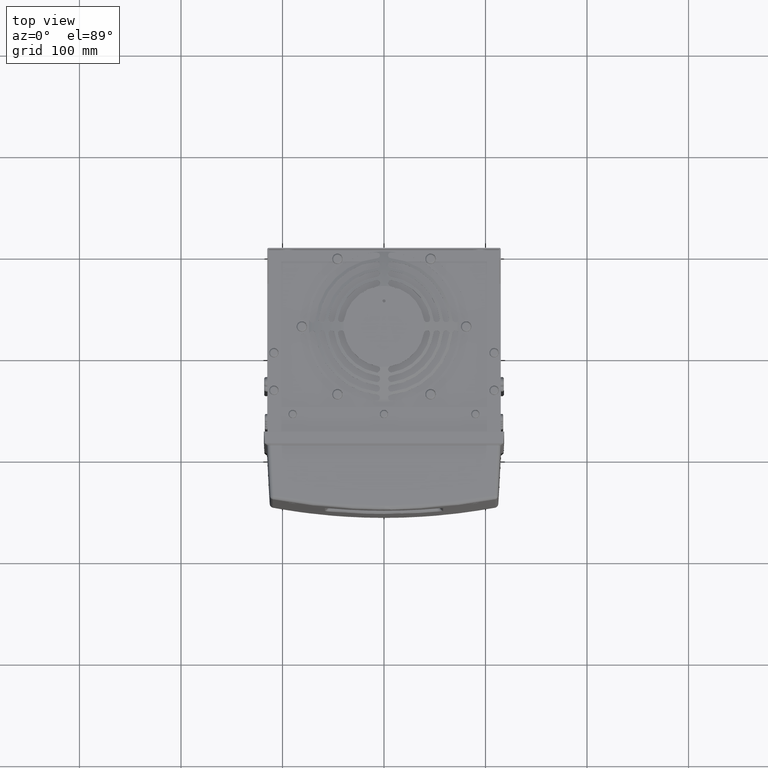
[diagram: clean part render]
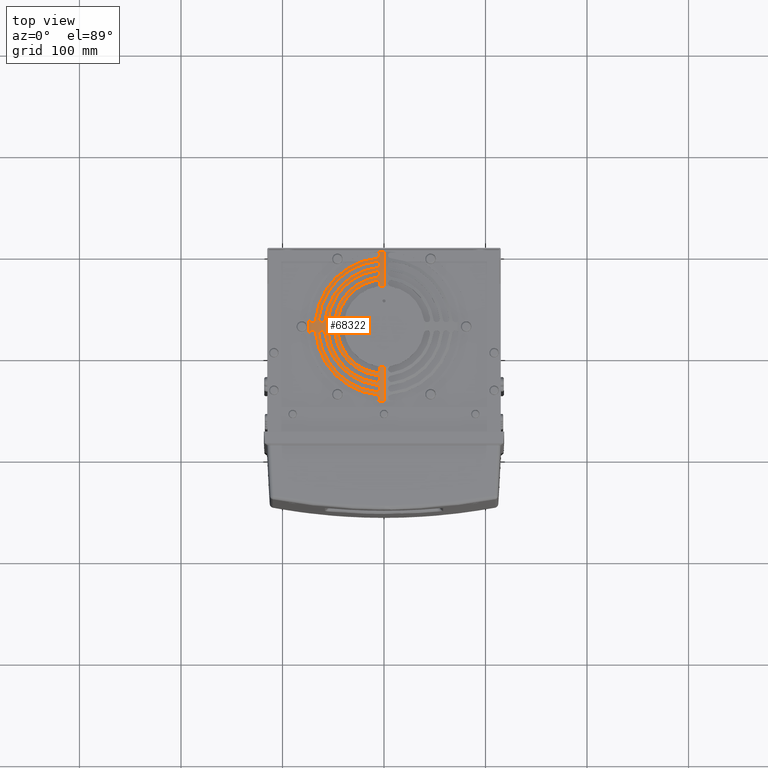
[diagram: same view with one face highlighted and labeled with its STEP entity id]
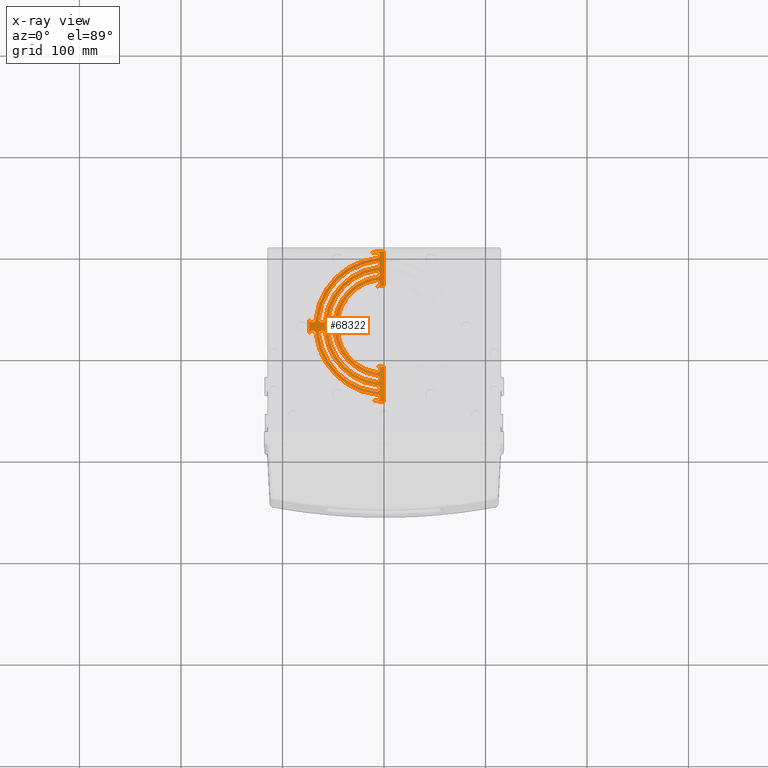
[diagram: x-ray of the same camera — body ghosted, the highlighted face saturated]
A machine part, top view. The second image highlights one B-rep face of the part: STEP entity #68322.
The next image is the same camera in x-ray: the body ghosted, the highlighted face saturated — about 0% of this face is hidden behind the body in this view.
In plain terms, the highlighted face is a freeform B-spline surface patch.
Its self-contained STEP definition (entity closure, byte-faithful):
#1633=CARTESIAN_POINT('',(7.640418649747E-12,-7.699999855511E1,
2.849065533155E2));
#1634=DIRECTION('',(-2.788477496170E-12,2.946502403348E-12,1.E0));
#1635=DIRECTION('',(-1.638589591001E-1,-9.864837766140E-1,2.449649004275E-12));
#1636=AXIS2_PLACEMENT_3D('',#1633,#1634,#1635);
#1691=CARTESIAN_POINT('',(7.640418671106E-12,-7.699999855511E1,
2.849065533078E2));
#1692=DIRECTION('',(-2.788477496170E-12,2.946502403348E-12,1.E0));
#1693=DIRECTION('',(-1.734238525235E-11,1.E0,-2.946645838143E-12));
#1694=AXIS2_PLACEMENT_3D('',#1691,#1692,#1693);
#1715=CARTESIAN_POINT('',(7.640742855842E-12,-7.699999855511E1,
2.849064370491E2));
#1716=DIRECTION('',(-2.788477496170E-12,2.946502403348E-12,1.E0));
#1717=DIRECTION('',(-9.952751908840E-1,9.709425529240E-2,-3.061088400337E-12));
#1718=AXIS2_PLACEMENT_3D('',#1715,#1716,#1717);
#29880=CARTESIAN_POINT('',(-4.923442703598E-5,-8.247413648874E1,
1.045233934910E2));
#29881=DIRECTION('',(9.999999999596E-1,-8.994098846346E-6,2.788503957153E-12));
#29882=DIRECTION('',(-1.599957301674E-6,-1.778893677859E-1,9.840504930267E-1));
#29883=AXIS2_PLACEMENT_3D('',#29880,#29881,#29882);
#29888=CARTESIAN_POINT('',(1.312158383080E-12,-7.699999855510E1,
2.871759853892E2));
#29889=DIRECTION('',(2.788477496170E-12,-2.946502403348E-12,-1.E0));
#29890=DIRECTION('',(-9.664791533652E-2,-9.953186326303E-1,2.663381849559E-12));
#29891=AXIS2_PLACEMENT_3D('',#29888,#29889,#29890);
#29896=CARTESIAN_POINT('',(1.312138174433E-12,-7.699999855510E1,
2.871759926364E2));
#29897=DIRECTION('',(2.788477496170E-12,-2.946502403348E-12,-1.E0));
#29898=DIRECTION('',(-9.948946575624E-1,1.009188800663E-1,-3.071454560899E-12));
#29899=AXIS2_PLACEMENT_3D('',#29896,#29897,#29898);
#29904=CARTESIAN_POINT('',(-1.537168819906E-11,-7.699999855508E1,
2.931591237165E2));
#29905=DIRECTION('',(-2.788477496170E-12,2.946502403348E-12,1.E0));
#29906=DIRECTION('',(-1.664735957496E-1,9.860459126827E-1,-3.369952048199E-12));
#29907=AXIS2_PLACEMENT_3D('',#29904,#29905,#29906);
#29912=CARTESIAN_POINT('',(-1.537182981204E-11,-7.699999855508E1,
2.931591745015E2));
#29913=DIRECTION('',(-2.788477496170E-12,2.946502403348E-12,1.E0));
#29914=DIRECTION('',(-9.860457795378E-1,-1.664743843829E-1,
-2.258976850651E-12));
#29915=AXIS2_PLACEMENT_3D('',#29912,#29913,#29914);
#29920=CARTESIAN_POINT('',(-6.797708572208E-12,-7.699999855509E1,
2.900843348259E2));
#29921=DIRECTION('',(2.788477496170E-12,-2.946502403348E-12,-1.E0));
#29922=DIRECTION('',(-1.161649291385E-1,-9.932299377477E-1,2.602791793278E-12));
#29923=AXIS2_PLACEMENT_3D('',#29920,#29921,#29922);
#29928=CARTESIAN_POINT('',(-6.113332795139E1,-8.099931862158E1,
2.892430471745E2));
#29929=CARTESIAN_POINT('',(-6.151675910830E1,-8.099932006563E1,
2.891274885152E2));
#29930=CARTESIAN_POINT('',(-6.226249378030E1,-8.114304335805E1,
2.888972206941E2));
#29931=CARTESIAN_POINT('',(-6.318448105190E1,-8.168221993923E1,
2.885987337726E2));
#29932=CARTESIAN_POINT('',(-6.388818000260E1,-8.249980178548E1,
2.883559456713E2));
#29933=CARTESIAN_POINT('',(-6.427561929968E1,-8.350530610685E1,
2.882020259139E2));
#29934=CARTESIAN_POINT('',(-6.430041659141E1,-8.418766437904E1,
2.881703017487E2));
#29935=CARTESIAN_POINT('',(-6.426194795762E1,-8.451635272320E1,
2.881703087694E2));
#29940=CARTESIAN_POINT('',(-1.461371694940E-12,-7.699999855510E1,
2.881706249665E2));
#29941=DIRECTION('',(-2.788477496170E-12,2.946502403348E-12,1.E0));
#29942=DIRECTION('',(-9.932294031286E-1,-1.161695001316E-1,
-2.427534040941E-12));
#29943=AXIS2_PLACEMENT_3D('',#29940,#29941,#29942);
#29948=CARTESIAN_POINT('',(-9.110634531566E-12,-7.699999855509E1,
2.909137931818E2));
#29949=DIRECTION('',(-2.788477496170E-12,2.946502403348E-12,1.E0));
#29950=DIRECTION('',(-9.905924194841E-1,-1.368453815834E-1,
-2.358948326642E-12));
#29951=AXIS2_PLACEMENT_3D('',#29948,#29949,#29950);
#29956=CARTESIAN_POINT('',(-1.350069010047E-11,-7.699999855508E1,
2.924881489279E2));
#29957=DIRECTION('',(2.788477496170E-12,-2.946502403348E-12,-1.E0));
#29958=DIRECTION('',(-1.368409117312E-1,-9.905930369615E-1,2.537757565272E-12));
#29959=AXIS2_PLACEMENT_3D('',#29956,#29957,#29958);
#29964=CARTESIAN_POINT('',(-6.797544266582E-12,-7.699999855509E1,
2.900842759028E2));
#29965=DIRECTION('',(2.788477496170E-12,-2.946502403348E-12,-1.E0));
#29966=DIRECTION('',(-9.932293807024E-1,1.161696918712E-1,-3.111853375519E-12));
#29967=AXIS2_PLACEMENT_3D('',#29964,#29965,#29966);
#29972=CARTESIAN_POINT('',(-4.000467301992E0,-1.586681880750E1,
2.892430671732E2));
#29973=CARTESIAN_POINT('',(-4.000461899948E0,-1.548279784150E1,
2.891273313805E2));
#29974=CARTESIAN_POINT('',(-4.142931212332E0,-1.473612641807E1,
2.888967996289E2));
#29975=CARTESIAN_POINT('',(-4.683350267021E0,-1.381443109528E1,
2.885983647429E2));
#29976=CARTESIAN_POINT('',(-5.500437690222E0,-1.311149238785E1,
2.883558268211E2));
#29977=CARTESIAN_POINT('',(-6.505583649372E0,-1.272440882344E1,
2.882020155362E2));
#29978=CARTESIAN_POINT('',(-7.187337592673E0,-1.269957667804E1,
2.881703292429E2));
#29979=CARTESIAN_POINT('',(-7.515880387838E0,-1.273799610742E1,
2.881703273116E2));
#29984=CARTESIAN_POINT('',(-1.461573215579E-12,-7.699999855510E1,
2.881706972355E2));
#29985=DIRECTION('',(-2.788477496170E-12,2.946502403348E-12,1.E0));
#29986=DIRECTION('',(-1.161648292203E-1,9.932299494338E-1,-3.250780695651E-12));
#29987=AXIS2_PLACEMENT_3D('',#29984,#29985,#29986);
#29992=CARTESIAN_POINT('',(-1.350060663826E-11,-7.699999855508E1,
2.924881189967E2));
#29993=DIRECTION('',(2.788477496170E-12,-2.946502403348E-12,-1.E0));
#29994=DIRECTION('',(-9.905923589570E-1,1.368458197245E-1,-3.165242226030E-12));
#29995=AXIS2_PLACEMENT_3D('',#29992,#29993,#29994);
#30000=CARTESIAN_POINT('',(-9.110741366267E-12,-7.699999855509E1,
2.909138314947E2));
#30001=DIRECTION('',(-2.788477496170E-12,2.946502403348E-12,1.E0));
#30002=DIRECTION('',(-1.368407500970E-1,9.905930592897E-1,-3.299868380346E-12));
#30003=AXIS2_PLACEMENT_3D('',#30000,#30001,#30002);
#30016=CARTESIAN_POINT('',(-1.885000635055E-11,-7.699999855508E1,
2.944065134323E2));
#30017=DIRECTION('',(2.788477496170E-12,-2.946502403348E-12,-1.E0));
#30018=DIRECTION('',(8.294783060497E-10,-1.E0,2.946438241940E-12));
#30019=AXIS2_PLACEMENT_3D('',#30016,#30017,#30018);
#30032=CARTESIAN_POINT('',(-1.884999437439E-11,-7.699999855508E1,
2.944065091374E2));
#30033=DIRECTION('',(2.788477496170E-12,-2.946502403348E-12,-1.E0));
#30034=DIRECTION('',(-9.860447420362E-1,-1.664805295003E-1,
-2.259458321004E-12));
#30035=AXIS2_PLACEMENT_3D('',#30032,#30033,#30034);
#30048=CARTESIAN_POINT('',(-1.885000635110E-11,-7.699999855508E1,
2.944065134325E2));
#30049=DIRECTION('',(2.788477496170E-12,-2.946502403348E-12,-1.E0));
#30050=DIRECTION('',(-1.664846300162E-1,9.860440497099E-1,-3.369194286439E-12));
#30051=AXIS2_PLACEMENT_3D('',#30048,#30049,#30050);
#30120=CARTESIAN_POINT('',(1.266336547884E-4,-3.720017860539E1,
2.944065258146E2));
#30121=CARTESIAN_POINT('',(1.003769075784E-4,-3.331507317628E1,
2.937042051986E2));
#30122=CARTESIAN_POINT('',(5.457586318429E-4,-2.558712525969E1,
2.920608284264E2));
#30123=CARTESIAN_POINT('',(8.803894859939E-4,-1.416765727772E1,
2.888891354757E2));
#30124=CARTESIAN_POINT('',(-2.182782502253E-5,-6.694397680358E0,
2.863099425846E2));
#30125=CARTESIAN_POINT('',(1.341269606875E-5,-3.000274899678E0,
2.849065893839E2));
#31450=CARTESIAN_POINT('',(-6.543145521984E0,-1.443830835213E2,
2.871756310863E2));
#31451=CARTESIAN_POINT('',(-6.203083500675E0,-1.444160942047E2,
2.871756349522E2));
#31452=CARTESIAN_POINT('',(-5.533198782469E0,-1.446102392756E2,
2.871298740895E2));
#31453=CARTESIAN_POINT('',(-4.706781381810E0,-1.452222068530E2,
2.869419642661E2));
#31454=CARTESIAN_POINT('',(-4.120295147298E0,-1.461527912470E2,
2.866323381005E2));
#31455=CARTESIAN_POINT('',(-3.931151025089E0,-1.472305075440E2,
2.862559477480E2));
#31456=CARTESIAN_POINT('',(-4.157567436625E0,-1.483235255682E2,
2.858581666391E2));
#31457=CARTESIAN_POINT('',(-4.822520403871E0,-1.492809839189E2,
2.854921001298E2));
#31458=CARTESIAN_POINT('',(-5.774988176306E0,-1.498748436794E2,
2.852455792416E2));
#31459=CARTESIAN_POINT('',(-6.474293837774E0,-1.499999998633E2,
2.851762221276E2));
#31460=CARTESIAN_POINT('',(-6.815225381727E0,-1.499999927464E2,
2.851643220778E2));
#31472=CARTESIAN_POINT('',(-6.815225381727E0,-1.499999927464E2,
2.851643220778E2));
#31473=CARTESIAN_POINT('',(-7.405551702015E0,-1.499999927464E2,
2.851437124166E2));
#31474=CARTESIAN_POINT('',(-8.585821206273E0,-1.499999718205E2,
2.850971305905E2));
#31475=CARTESIAN_POINT('',(-1.035553194242E1,-1.500001008393E2,
2.850111836909E2));
#31476=CARTESIAN_POINT('',(-1.153537566448E1,-1.499997777151E2,
2.849432484820E2));
#31477=CARTESIAN_POINT('',(-1.212485606840E1,-1.499997777151E2,
2.849065560848E2));
#31496=CARTESIAN_POINT('',(-7.362227263838E1,-8.446760405730E1,
2.849064925307E2));
#31497=CARTESIAN_POINT('',(-7.365606996613E1,-8.413438190599E1,
2.849064941194E2));
#31498=CARTESIAN_POINT('',(-7.361902549068E1,-8.344713943747E1,
2.849451425610E2));
#31499=CARTESIAN_POINT('',(-7.320869795854E1,-8.244303084913E1,
2.851304109762E2));
#31500=CARTESIAN_POINT('',(-7.249346166801E1,-8.164829254874E1,
2.854175273851E2));
#31501=CARTESIAN_POINT('',(-7.159566805531E1,-8.113882250385E1,
2.857594529785E2));
#31502=CARTESIAN_POINT('',(-7.086495119823E1,-8.099933528029E1,
2.860262894403E2));
#31503=CARTESIAN_POINT('',(-7.048831989779E1,-8.099933421884E1,
2.861611165774E2));
#31508=CARTESIAN_POINT('',(-7.048831989779E1,-8.099933421884E1,
2.861611165774E2));
#31509=CARTESIAN_POINT('',(-7.009365645018E1,-8.099933310656E1,
2.863023988943E2));
#31510=CARTESIAN_POINT('',(-6.931209765143E1,-8.114865131300E1,
2.865760914741E2));
#31511=CARTESIAN_POINT('',(-6.829557395430E1,-8.178579973268E1,
2.869150368016E2));
#31512=CARTESIAN_POINT('',(-6.759289874445E1,-8.274161768219E1,
2.871300623459E2));
#31513=CARTESIAN_POINT('',(-6.739089430215E1,-8.346911852611E1,
2.871757604906E2));
#31514=CARTESIAN_POINT('',(-6.735407274019E1,-8.383226369552E1,
2.871757551151E2));
#31547=CARTESIAN_POINT('',(-6.735437425156E1,-7.016769764906E1,
2.871756357288E2));
#31548=CARTESIAN_POINT('',(-6.739341294433E1,-7.055268073181E1,
2.871756405823E2));
#31549=CARTESIAN_POINT('',(-6.761470018995E1,-7.132000694058E1,
2.871245229811E2));
#31550=CARTESIAN_POINT('',(-6.838670208058E1,-7.230653876432E1,
2.868858212091E2));
#31551=CARTESIAN_POINT('',(-6.947442209683E1,-7.290901071746E1,
2.865205962267E2));
#31552=CARTESIAN_POINT('',(-7.061281366379E1,-7.306880303793E1,
2.861192109637E2));
#31553=CARTESIAN_POINT('',(-7.181648013716E1,-7.279830129142E1,
2.856775233287E2));
#31554=CARTESIAN_POINT('',(-7.285129047705E1,-7.205327297987E1,
2.852774880601E2));
#31555=CARTESIAN_POINT('',(-7.349206801972E1,-7.101969670874E1,
2.850092480759E2));
#31556=CARTESIAN_POINT('',(-7.364864623345E1,-7.021554084436E1,
2.849195945637E2));
#31557=CARTESIAN_POINT('',(-7.364430837937E1,-6.981556822730E1,
2.849064820852E2));
#31569=CARTESIAN_POINT('',(-1.212480965506E1,-4.000215659993E0,
2.849065590892E2));
#31570=CARTESIAN_POINT('',(-1.153533245653E1,-4.000215659992E0,
2.849432506721E2));
#31571=CARTESIAN_POINT('',(-1.035556964740E1,-3.999897353449E0,
2.850111853359E2));
#31572=CARTESIAN_POINT('',(-8.585834590874E0,-4.000027103555E0,
2.850971317798E2));
#31573=CARTESIAN_POINT('',(-7.405538856762E0,-3.999999409812E0,
2.851437063925E2));
#31574=CARTESIAN_POINT('',(-6.815210455831E0,-3.999999409812E0,
2.851643161520E2));
#31586=CARTESIAN_POINT('',(-6.815210455831E0,-3.999999409812E0,
2.851643161520E2));
#31587=CARTESIAN_POINT('',(-6.471321657190E0,-3.999999409812E0,
2.851763221226E2));
#31588=CARTESIAN_POINT('',(-5.783478191062E0,-4.130706940740E0,
2.852473939971E2));
#31589=CARTESIAN_POINT('',(-4.908834474942E0,-4.656458590885E0,
2.854665850830E2));
#31590=CARTESIAN_POINT('',(-4.232223006172E0,-5.525764484658E0,
2.858014805019E2));
#31591=CARTESIAN_POINT('',(-3.939560247715E0,-6.588950966439E0,
2.861910776325E2));
#31592=CARTESIAN_POINT('',(-4.061100828884E0,-7.689920071199E0,
2.865784479667E2));
#31593=CARTESIAN_POINT('',(-4.623882561526E0,-8.702751795953E0,
2.869182059587E2));
#31594=CARTESIAN_POINT('',(-5.518554736739E0,-9.391862517155E0,
2.871312052166E2));
#31595=CARTESIAN_POINT('',(-6.203366910660E0,-9.584249165076E0,
2.871757632299E2));
#31596=CARTESIAN_POINT('',(-6.543147908994E0,-9.617225539975E0,
2.871757570144E2));
#31780=CARTESIAN_POINT('',(-7.580978200018E0,-2.212118418891E1,
2.909135891182E2));
#31781=CARTESIAN_POINT('',(-7.231949221446E0,-2.207297731809E1,
2.909135912919E2));
#31782=CARTESIAN_POINT('',(-6.513429992696E0,-2.209291634049E1,
2.909433113636E2));
#31783=CARTESIAN_POINT('',(-5.483253219207E0,-2.249464204111E1,
2.910794402740E2));
#31784=CARTESIAN_POINT('',(-4.667047306526E0,-2.320871364955E1,
2.912856093866E2));
#31785=CARTESIAN_POINT('',(-4.136089243767E0,-2.413272936536E1,
2.915336877561E2));
#31786=CARTESIAN_POINT('',(-4.000304195063E0,-2.486712110879E1,
2.917202015719E2));
#31787=CARTESIAN_POINT('',(-4.000308630482E0,-2.524161967163E1,
2.918127825715E2));
#31792=CARTESIAN_POINT('',(-4.000308630482E0,-2.524161967163E1,
2.918127825715E2));
#31793=CARTESIAN_POINT('',(-4.000313140108E0,-2.562238394403E1,
2.919069125374E2));
#31794=CARTESIAN_POINT('',(-4.138549257004E0,-2.638038880449E1,
2.920890755183E2));
#31795=CARTESIAN_POINT('',(-4.738513058007E0,-2.737490451877E1,
2.923131492796E2));
#31796=CARTESIAN_POINT('',(-5.645274129312E0,-2.808487843772E1,
2.924563435874E2));
#31797=CARTESIAN_POINT('',(-6.357784522816E0,-2.831226455952E1,
2.924880037563E2));
#31798=CARTESIAN_POINT('',(-6.718830099885E0,-2.836215002755E1,
2.924880061852E2));
#31817=CARTESIAN_POINT('',(-4.863782892088E1,-7.028078717252E1,
2.924879952797E2));
#31818=CARTESIAN_POINT('',(-4.868944200004E1,-7.065457272422E1,
2.924880013466E2));
#31819=CARTESIAN_POINT('',(-4.892874225646E1,-7.138141835827E1,
2.924539213951E2));
#31820=CARTESIAN_POINT('',(-4.963988698492E1,-7.227087576829E1,
2.923098377997E2));
#31821=CARTESIAN_POINT('',(-5.061652296732E1,-7.285849366965E1,
2.920897468026E2));
#31822=CARTESIAN_POINT('',(-5.137519003625E1,-7.300041061049E1,
2.919075279769E2));
#31823=CARTESIAN_POINT('',(-5.175844706669E1,-7.300041306321E1,
2.918127815076E2));
#31828=CARTESIAN_POINT('',(-5.175844706669E1,-7.300041306321E1,
2.918127815076E2));
#31829=CARTESIAN_POINT('',(-5.212509453974E1,-7.300041540963E1,
2.917221411519E2));
#31830=CARTESIAN_POINT('',(-5.285103900928E1,-7.286968848904E1,
2.915379073981E2));
#31831=CARTESIAN_POINT('',(-5.379042197033E1,-7.233677676450E1,
2.912859874474E2));
#31832=CARTESIAN_POINT('',(-5.451530689872E1,-7.150364165053E1,
2.910764819245E2));
#31833=CARTESIAN_POINT('',(-5.491109805154E1,-7.046383581369E1,
2.909415134358E2));
#31834=CARTESIAN_POINT('',(-5.492542713E1,-6.975800860204E1,2.909136551819E2));
#31835=CARTESIAN_POINT('',(-5.487852350634E1,-6.941864424006E1,
2.909136603577E2));
#31847=CARTESIAN_POINT('',(-4.000467301992E0,-1.586681880750E1,
2.892430671732E2));
#31848=CARTESIAN_POINT('',(-4.000472762046E0,-1.625496363613E1,
2.893600458109E2));
#31849=CARTESIAN_POINT('',(-4.143637884899E0,-1.702580522111E1,
2.895867259049E2));
#31850=CARTESIAN_POINT('',(-4.764187782727E0,-1.803255491497E1,
2.898667895347E2));
#31851=CARTESIAN_POINT('',(-5.698004246694E0,-1.873926268378E1,
2.900453253871E2));
#31852=CARTESIAN_POINT('',(-6.420586680385E0,-1.895311562758E1,
2.900840991267E2));
#31853=CARTESIAN_POINT('',(-6.783985098325E0,-1.899562636949E1,
2.900841016277E2));
#31872=CARTESIAN_POINT('',(-5.800459238385E1,-7.021552041267E1,
2.900840091059E2));
#31873=CARTESIAN_POINT('',(-5.804694353873E1,-7.057786039232E1,
2.900840181330E2));
#31874=CARTESIAN_POINT('',(-5.825815186461E1,-7.131674799309E1,
2.900465903723E2));
#31875=CARTESIAN_POINT('',(-5.904774564097E1,-7.232548589987E1,
2.898458526508E2));
#31876=CARTESIAN_POINT('',(-6.015911815247E1,-7.292348146126E1,
2.895337241928E2));
#31877=CARTESIAN_POINT('',(-6.129890584874E1,-7.306325158026E1,
2.891955944964E2));
#31878=CARTESIAN_POINT('',(-6.244295133726E1,-7.279714054977E1,
2.888406413677E2));
#31879=CARTESIAN_POINT('',(-6.345251842104E1,-7.209805741454E1,
2.885096652800E2));
#31880=CARTESIAN_POINT('',(-6.413055014891E1,-7.105179916430E1,
2.882660886569E2));
#31881=CARTESIAN_POINT('',(-6.428335654346E1,-7.024907218250E1,
2.881909619769E2));
#31882=CARTESIAN_POINT('',(-6.428330525401E1,-6.984933895792E1,
2.881767312712E2));
#31887=CARTESIAN_POINT('',(-6.428330525401E1,-6.984933895792E1,
2.881767312712E2));
#31888=CARTESIAN_POINT('',(-6.428330002446E1,-6.980858161170E1,
2.881752802890E2));
#31889=CARTESIAN_POINT('',(-6.428165162932E1,-6.972744725032E1,
2.881728837915E2));
#31890=CARTESIAN_POINT('',(-6.427472779343E1,-6.960537831879E1,
2.881706309038E2));
#31891=CARTESIAN_POINT('',(-6.426635285754E1,-6.952418783263E1,
2.881704515607E2));
#31892=CARTESIAN_POINT('',(-6.426161842103E1,-6.948373580483E1,
2.881704524779E2));
#31904=CARTESIAN_POINT('',(-4.545669872093E1,-8.467453422426E1,
2.931590553981E2));
#31905=CARTESIAN_POINT('',(-4.551688415143E1,-8.431810170962E1,
2.931590538654E2));
#31906=CARTESIAN_POINT('',(-4.551459842755E1,-8.358175517111E1,
2.931840598738E2));
#31907=CARTESIAN_POINT('',(-4.512695990294E1,-8.252875552147E1,
2.932958638060E2));
#31908=CARTESIAN_POINT('',(-4.440994844060E1,-8.168501128366E1,
2.934652031545E2));
#31909=CARTESIAN_POINT('',(-4.346638113720E1,-8.113650668907E1,
2.936686466599E2));
#31910=CARTESIAN_POINT('',(-4.272591688942E1,-8.100002504045E1,
2.938177499398E2));
#31911=CARTESIAN_POINT('',(-4.235069840724E1,-8.100002301961E1,
2.938908663823E2));
#31916=CARTESIAN_POINT('',(-4.235069840724E1,-8.100002301961E1,
2.938908663823E2));
#31917=CARTESIAN_POINT('',(-4.197920532991E1,-8.100002101883E1,
2.939632568787E2));
#31918=CARTESIAN_POINT('',(-4.123821723462E1,-8.113220884653E1,
2.941028565034E2));
#31919=CARTESIAN_POINT('',(-4.026069824362E1,-8.170511534660E1,
2.942732525267E2));
#31920=CARTESIAN_POINT('',(-3.954762187732E1,-8.257639397805E1,
2.943822948224E2));
#31921=CARTESIAN_POINT('',(-3.930447856755E1,-8.327105911719E1,
2.944064983322E2));
#31922=CARTESIAN_POINT('',(-3.924459918933E1,-8.362573652171E1,
2.944064979583E2));
#31941=CARTESIAN_POINT('',(-6.625784646966E0,-1.162445125675E2,
2.944065148568E2));
#31942=CARTESIAN_POINT('',(-6.248159967801E0,-1.163082676070E2,
2.944065150650E2));
#31943=CARTESIAN_POINT('',(-5.507598036338E0,-1.165753681604E2,
2.943791950451E2));
#31944=CARTESIAN_POINT('',(-4.591104726586E0,-1.173830846404E2,
2.942533384213E2));
#31945=CARTESIAN_POINT('',(-4.052058741859E0,-1.184667571362E2,
2.940612385413E2));
#31946=CARTESIAN_POINT('',(-3.941504385452E0,-1.196141940415E2,
2.938415840145E2));
#31947=CARTESIAN_POINT('',(-4.247319568801E0,-1.207514183989E2,
2.936090326870E2));
#31948=CARTESIAN_POINT('',(-4.953897669531E0,-1.217115230682E2,
2.933968899749E2));
#31949=CARTESIAN_POINT('',(-5.973055863072E0,-1.223530924573E2,
2.932363129796E2));
#31950=CARTESIAN_POINT('',(-6.757806354932E0,-1.225004809756E2,
2.931809973502E2));
#31951=CARTESIAN_POINT('',(-7.150118121773E0,-1.225004711490E2,
2.931678970084E2));
#31956=CARTESIAN_POINT('',(-7.150118121773E0,-1.225004711490E2,
2.931678970084E2));
#31957=CARTESIAN_POINT('',(-7.208671034313E0,-1.225004696824E2,
2.931659417696E2));
#31958=CARTESIAN_POINT('',(-7.325705522371E0,-1.224974670787E2,
2.931625951676E2));
#31959=CARTESIAN_POINT('',(-7.500797724444E0,-1.224828256442E2,
2.931596219541E2));
#31960=CARTESIAN_POINT('',(-7.616748219112E0,-1.224661824041E2,
2.931591286460E2));
#31961=CARTESIAN_POINT('',(-7.674443906897E0,-1.224564407622E2,
2.931591287965E2));
#31980=CARTESIAN_POINT('',(-7.674477870694E0,-3.154344104793E1,
2.931590864484E2));
#31981=CARTESIAN_POINT('',(-7.318040109329E0,-3.148325902234E1,
2.931590857817E2));
#31982=CARTESIAN_POINT('',(-6.581719313256E0,-3.148534981490E1,
2.931840512230E2));
#31983=CARTESIAN_POINT('',(-5.528788503677E0,-3.187303277050E1,
2.932958608687E2));
#31984=CARTESIAN_POINT('',(-4.684961303375E0,-3.259010214E1,2.934652151556E2));
#31985=CARTESIAN_POINT('',(-4.136415833644E0,-3.353373363888E1,
2.936686724844E2));
#31986=CARTESIAN_POINT('',(-4.000143994064E0,-3.427413490916E1,
2.938177570077E2));
#31987=CARTESIAN_POINT('',(-4.000142113344E0,-3.464930143720E1,
2.938908633280E2));
#31992=CARTESIAN_POINT('',(-4.000142113344E0,-3.464930143720E1,
2.938908633280E2));
#31993=CARTESIAN_POINT('',(-4.000140250933E0,-3.502081558875E1,
2.939632579328E2));
#31994=CARTESIAN_POINT('',(-4.132164012997E0,-3.576183377864E1,
2.941028673122E2));
#31995=CARTESIAN_POINT('',(-4.705223852772E0,-3.673941326480E1,
2.942732714652E2));
#31996=CARTESIAN_POINT('',(-5.576426434489E0,-3.745235586586E1,
2.943822897152E2));
#31997=CARTESIAN_POINT('',(-6.271106399771E0,-3.769559995405E1,
2.944065144186E2));
#31998=CARTESIAN_POINT('',(-6.625742987473E0,-3.775547752675E1,
2.944065149607E2));
#32017=CARTESIAN_POINT('',(-3.924461615816E1,-7.037428860165E1,
2.944064955141E2));
#32018=CARTESIAN_POINT('',(-3.930836848103E1,-7.075189283490E1,
2.944064954284E2));
#32019=CARTESIAN_POINT('',(-3.957530377906E1,-7.149232905695E1,
2.943792062189E2));
#32020=CARTESIAN_POINT('',(-4.038305213871E1,-7.240886885345E1,
2.942533441203E2));
#32021=CARTESIAN_POINT('',(-4.146674859455E1,-7.294794826777E1,
2.940612408781E2));
#32022=CARTESIAN_POINT('',(-4.261428083816E1,-7.305848863300E1,
2.938415673395E2));
#32023=CARTESIAN_POINT('',(-4.375147206414E1,-7.275266067718E1,
2.936090226339E2));
#32024=CARTESIAN_POINT('',(-4.471165652297E1,-7.204597355334E1,
2.933968574867E2));
#32025=CARTESIAN_POINT('',(-4.535305522448E1,-7.102688735961E1,
2.932363285217E2));
#32026=CARTESIAN_POINT('',(-4.550067964460E1,-7.024190925531E1,
2.931809263632E2));
#32027=CARTESIAN_POINT('',(-4.550064597809E1,-6.984956789268E1,
2.931678292830E2));
#32032=CARTESIAN_POINT('',(-4.550064597809E1,-6.984956789268E1,
2.931678292830E2));
#32033=CARTESIAN_POINT('',(-4.550064095550E1,-6.979103580100E1,
2.931658753736E2));
#32034=CARTESIAN_POINT('',(-4.549739936125E1,-6.967421602808E1,
2.931626081967E2));
#32035=CARTESIAN_POINT('',(-4.548277207956E1,-6.949915006783E1,
2.931596496957E2));
#32036=CARTESIAN_POINT('',(-4.546633473173E1,-6.938320958590E1,
2.931590699055E2));
#32037=CARTESIAN_POINT('',(-4.545659471916E1,-6.932552436065E1,
2.931590700855E2));
#32056=CARTESIAN_POINT('',(-5.487855893573E1,-8.458132874217E1,
2.909136397108E2));
#32057=CARTESIAN_POINT('',(-5.488512977875E1,-8.453378315534E1,
2.909136390966E2));
#32058=CARTESIAN_POINT('',(-5.489647763851E1,-8.443827704123E1,
2.909139792274E2));
#32059=CARTESIAN_POINT('',(-5.490623802515E1,-8.429444567702E1,
2.909165205600E2));
#32060=CARTESIAN_POINT('',(-5.490843830848E1,-8.419878100303E1,
2.909193005145E2));
#32061=CARTESIAN_POINT('',(-5.490844502603E1,-8.415072935216E1,
2.909209599545E2));
#32066=CARTESIAN_POINT('',(-5.490844502603E1,-8.415072935216E1,
2.909209599545E2));
#32067=CARTESIAN_POINT('',(-5.490849863407E1,-8.376726294947E1,
2.909342027769E2));
#32068=CARTESIAN_POINT('',(-5.476836425117E1,-8.299072400450E1,
2.909961114234E2));
#32069=CARTESIAN_POINT('',(-5.412103391212E1,-8.195013754490E1,
2.911937090936E2));
#32070=CARTESIAN_POINT('',(-5.313537193366E1,-8.123443064466E1,
2.914636241487E2));
#32071=CARTESIAN_POINT('',(-5.199687966126E1,-8.093988339349E1,
2.917560046447E2));
#32072=CARTESIAN_POINT('',(-5.084290066045E1,-8.105906489352E1,
2.920368871625E2));
#32073=CARTESIAN_POINT('',(-4.974156109361E1,-8.162391864113E1,
2.922884320484E2));
#32074=CARTESIAN_POINT('',(-4.893414297966E1,-8.258750420188E1,
2.924536416209E2));
#32075=CARTESIAN_POINT('',(-4.869009020129E1,-8.334053017644E1,
2.924880168751E2));
#32076=CARTESIAN_POINT('',(-4.863780303127E1,-8.371918795322E1,
2.924880110933E2));
#32095=CARTESIAN_POINT('',(-6.718887583421E0,-1.256380700055E2,
2.924879523056E2));
#32096=CARTESIAN_POINT('',(-6.341462439273E0,-1.256902153502E2,
2.924879505665E2));
#32097=CARTESIAN_POINT('',(-5.592042423748E0,-1.259329373865E2,
2.924537733294E2));
#32098=CARTESIAN_POINT('',(-4.634713882763E0,-1.267299541943E2,
2.922909146864E2));
#32099=CARTESIAN_POINT('',(-4.066514944960E0,-1.278219107283E2,
2.920418277287E2));
#32100=CARTESIAN_POINT('',(-3.938484856726E0,-1.289637338641E2,
2.917642760755E2));
#32101=CARTESIAN_POINT('',(-4.219529092211E0,-1.301027400785E2,
2.914722612515E2));
#32102=CARTESIAN_POINT('',(-4.922550015048E0,-1.310954598598E2,
2.912010300707E2));
#32103=CARTESIAN_POINT('',(-5.963861023591E0,-1.317601680797E2,
2.909990834034E2));
#32104=CARTESIAN_POINT('',(-6.755996126468E0,-1.319084495330E2,
2.909346010209E2));
#32105=CARTESIAN_POINT('',(-7.149969080506E0,-1.319084553355E2,
2.909209811788E2));
#32110=CARTESIAN_POINT('',(-7.149969080506E0,-1.319084553355E2,
2.909209811788E2));
#32111=CARTESIAN_POINT('',(-7.198032306702E0,-1.319084560434E2,
2.909193196090E2));
#32112=CARTESIAN_POINT('',(-7.294116449373E0,-1.319062500529E2,
2.909165358973E2));
#32113=CARTESIAN_POINT('',(-7.437957899739E0,-1.318965196326E2,
2.909139949454E2));
#32114=CARTESIAN_POINT('',(-7.533369802020E0,-1.318851450025E2,
2.909136532427E2));
#32115=CARTESIAN_POINT('',(-7.580945617459E0,-1.318785739578E2,
2.909136529494E2));
#32148=CARTESIAN_POINT('',(-6.113332795139E1,-8.099931862158E1,
2.892430471745E2));
#32149=CARTESIAN_POINT('',(-6.074513646006E1,-8.099931715960E1,
2.893600405057E2));
#32150=CARTESIAN_POINT('',(-5.997410373485E1,-8.114417574378E1,
2.895867486582E2));
#32151=CARTESIAN_POINT('',(-5.896743208631E1,-8.176409671816E1,
2.898667897581E2));
#32152=CARTESIAN_POINT('',(-5.826081963574E1,-8.269786916993E1,
2.900452985938E2));
#32153=CARTESIAN_POINT('',(-5.804677901162E1,-8.342079181556E1,
2.900841407707E2));
#32154=CARTESIAN_POINT('',(-5.800428095074E1,-8.378436955814E1,
2.900841326539E2));
#32173=CARTESIAN_POINT('',(-6.784006245264E0,-1.350043220584E2,
2.900841322812E2));
#32174=CARTESIAN_POINT('',(-6.421675648037E0,-1.350467047680E2,
2.900841307179E2));
#32175=CARTESIAN_POINT('',(-5.683104362631E0,-1.352584004427E2,
2.900465085875E2));
#32176=CARTESIAN_POINT('',(-4.674276431201E0,-1.360479728270E2,
2.898457948529E2));
#32177=CARTESIAN_POINT('',(-4.076542196292E0,-1.371592150567E2,
2.895336931268E2));
#32178=CARTESIAN_POINT('',(-3.936761794344E0,-1.382986564548E2,
2.891956684176E2));
#32179=CARTESIAN_POINT('',(-4.202706384818E0,-1.394425708052E2,
2.888407606221E2));
#32180=CARTESIAN_POINT('',(-4.901643105791E0,-1.404522938788E2,
2.885097433708E2));
#32181=CARTESIAN_POINT('',(-5.948160320934E0,-1.411304822730E2,
2.882661154802E2));
#32182=CARTESIAN_POINT('',(-6.750472151615E0,-1.412833595199E2,
2.881909665202E2));
#32183=CARTESIAN_POINT('',(-7.150105648958E0,-1.412833539190E2,
2.881767262192E2));
#32188=CARTESIAN_POINT('',(-7.150105648958E0,-1.412833539190E2,
2.881767262192E2));
#32189=CARTESIAN_POINT('',(-7.190864801587E0,-1.412833533477E2,
2.881752738320E2));
#32190=CARTESIAN_POINT('',(-7.272276761353E0,-1.412816493386E2,
2.881728934632E2));
#32191=CARTESIAN_POINT('',(-7.394345966598E0,-1.412747274212E2,
2.881706487089E2));
#32192=CARTESIAN_POINT('',(-7.475401106053E0,-1.412664454049E2,
2.881704151958E2));
#32193=CARTESIAN_POINT('',(-7.515850318729E0,-1.412617152546E2,
2.881704149786E2));
#33291=CARTESIAN_POINT('',(-1.212553865397E1,-1.499996516137E2,
2.849065533156E2));
#33292=CARTESIAN_POINT('',(1.708381400687E-13,-1.509998501383E2,
2.849065533157E2));
#33293=VERTEX_POINT('',#33291);
#33294=VERTEX_POINT('',#33292);
#33304=CARTESIAN_POINT('',(-1.275691836795E-9,-3.000146972033E0,
2.849065533152E2));
#33305=VERTEX_POINT('',#33304);
#33306=CARTESIAN_POINT('',(-1.212553867189E1,-4.000345479029E0,
2.849065533075E2));
#33307=VERTEX_POINT('',#33306);
#33310=CARTESIAN_POINT('',(-7.363810996910E1,-6.981568185492E1,
2.849064967660E2));
#33311=VERTEX_POINT('',#33310);
#33312=CARTESIAN_POINT('',(-7.362250622889E1,-8.446658456315E1,
2.849064370489E2));
#33313=VERTEX_POINT('',#33312);
#37325=CARTESIAN_POINT('',(3.299431086852E-8,-1.167999072858E2,
2.944065134324E2));
#37326=CARTESIAN_POINT('',(-6.626125293211E0,-1.162444529222E2,
2.944065134324E2));
#37327=VERTEX_POINT('',#37325);
#37328=VERTEX_POINT('',#37326);
#37329=VERTEX_POINT('',#31472);
#37330=VERTEX_POINT('',#31450);
#37331=CARTESIAN_POINT('',(-6.735301129279E1,-8.383209226804E1,
2.871759853890E2));
#37332=VERTEX_POINT('',#37331);
#37333=VERTEX_POINT('',#31508);
#37334=VERTEX_POINT('',#31547);
#37335=CARTESIAN_POINT('',(-6.542987632122E0,-9.618309149070E0,
2.871759926362E2));
#37336=VERTEX_POINT('',#37335);
#37337=VERTEX_POINT('',#31586);
#37338=VERTEX_POINT('',#30120);
#37339=CARTESIAN_POINT('',(-6.626073079550E0,-3.775553537324E1,
2.944065134324E2));
#37340=VERTEX_POINT('',#37339);
#37341=VERTEX_POINT('',#31992);
#37342=VERTEX_POINT('',#31980);
#37343=CARTESIAN_POINT('',(-4.545620929770E1,-6.932563714612E1,
2.931591237163E2));
#37344=VERTEX_POINT('',#37343);
#37345=VERTEX_POINT('',#32032);
#37346=VERTEX_POINT('',#32017);
#37347=CARTESIAN_POINT('',(-3.924451416425E1,-8.362591238993E1,
2.944065091373E2));
#37348=VERTEX_POINT('',#37347);
#37349=VERTEX_POINT('',#31916);
#37350=VERTEX_POINT('',#31904);
#37351=CARTESIAN_POINT('',(-7.674314963509E0,-1.224559765460E2,
2.931591745016E2));
#37352=VERTEX_POINT('',#37351);
#37353=VERTEX_POINT('',#31956);
#37354=CARTESIAN_POINT('',(-6.783865000451E0,-1.350032002275E2,
2.900843348261E2));
#37355=CARTESIAN_POINT('',(-5.800317135924E1,-8.378412273311E1,
2.900843348258E2));
#37356=VERTEX_POINT('',#37354);
#37357=VERTEX_POINT('',#37355);
#37358=VERTEX_POINT('',#32148);
#37359=VERTEX_POINT('',#29935);
#37360=CARTESIAN_POINT('',(-7.515721680680E0,-1.412607130108E2,
2.881706249666E2));
#37361=VERTEX_POINT('',#37360);
#37362=VERTEX_POINT('',#32188);
#37363=CARTESIAN_POINT('',(-5.487767894983E1,-8.458107505900E1,
2.909137931816E2));
#37364=CARTESIAN_POINT('',(-7.580820632073E0,-1.318777128517E2,
2.909137931819E2));
#37365=VERTEX_POINT('',#37363);
#37366=VERTEX_POINT('',#37364);
#37367=VERTEX_POINT('',#32110);
#37368=VERTEX_POINT('',#32095);
#37369=CARTESIAN_POINT('',(-4.863686753608E1,-8.371894922627E1,
2.924881489277E2));
#37370=VERTEX_POINT('',#37369);
#37371=VERTEX_POINT('',#32066);
#37372=VERTEX_POINT('',#31872);
#37373=VERTEX_POINT('',#31882);
#37374=CARTESIAN_POINT('',(-6.783862444588E0,-1.899658858300E1,
2.900842759027E2));
#37375=VERTEX_POINT('',#37374);
#37376=VERTEX_POINT('',#31847);
#37377=VERTEX_POINT('',#29979);
#37378=CARTESIAN_POINT('',(-6.426045656628E1,-6.948400100824E1,
2.881706972353E2));
#37379=VERTEX_POINT('',#37378);
#37380=CARTESIAN_POINT('',(-4.863699380677E1,-7.028101952578E1,
2.924881189966E2));
#37381=CARTESIAN_POINT('',(-6.718711449321E0,-2.836296778412E1,
2.924881189966E2));
#37382=VERTEX_POINT('',#37380);
#37383=VERTEX_POINT('',#37381);
#37384=VERTEX_POINT('',#31792);
#37385=VERTEX_POINT('',#31780);
#37386=CARTESIAN_POINT('',(-5.487753331518E1,-6.941891309384E1,
2.909138314945E2));
#37387=VERTEX_POINT('',#37386);
#37388=VERTEX_POINT('',#31828);
#68184=CARTESIAN_POINT('',(4.707540672446E0,-2.165338049912E0,
2.845301550744E2));
#68185=CARTESIAN_POINT('',(3.971361993822E0,-1.386819636137E1,
2.890580701568E2));
#68186=CARTESIAN_POINT('',(3.210994981584E0,-2.595557089063E1,
2.924223064289E2));
#68187=CARTESIAN_POINT('',(2.433670716048E0,-3.831251086439E1,
2.945908700477E2));
#68188=CARTESIAN_POINT('',(-4.134528071375E1,7.316555128624E-1,
2.845301550743E2));
#68189=CARTESIAN_POINT('',(-3.487958742706E1,-1.142424294022E1,
2.890580701567E2));
#68190=CARTESIAN_POINT('',(-2.820145339624E1,-2.397954297307E1,
2.924223064288E2));
#68191=CARTESIAN_POINT('',(-2.137438758838E1,-3.681484384696E1,
2.945908700476E2));
#68192=CARTESIAN_POINT('',(-7.498256657425E1,-3.085612581584E1,
2.845301550743E2));
#68193=CARTESIAN_POINT('',(-6.325657828856E1,-3.807223665223E1,
2.890580701567E2));
#68194=CARTESIAN_POINT('',(-5.114531381258E1,-4.552544440736E1,
2.924223064288E2));
#68195=CARTESIAN_POINT('',(-3.876395111270E1,-5.314486917319E1,
2.945908700476E2));
#68196=CARTESIAN_POINT('',(-7.498258032443E1,-7.699997621143E1,
2.845301550744E2));
#68197=CARTESIAN_POINT('',(-6.325658988844E1,-7.699997970559E1,
2.890580701568E2));
#68198=CARTESIAN_POINT('',(-5.114532319152E1,-7.699998331455E1,
2.924223064289E2));
#68199=CARTESIAN_POINT('',(-3.876395822117E1,-7.699998700400E1,
2.945908700477E2));
#68200=CARTESIAN_POINT('',(-7.498259407460E1,-1.231438266070E2,
2.845301550746E2));
#68201=CARTESIAN_POINT('',(-6.325660148832E1,-1.159277227589E2,
2.890580701569E2));
#68202=CARTESIAN_POINT('',(-5.114533257046E1,-1.084745222217E2,
2.924223064290E2));
#68203=CARTESIAN_POINT('',(-3.876396532963E1,-1.008551048348E2,
2.945908700478E2));
#68204=CARTESIAN_POINT('',(-4.134532703946E1,-1.547316279825E2,
2.845301550748E2));
#68205=CARTESIAN_POINT('',(-3.487962650823E1,-1.425757333828E2,
2.890580701571E2));
#68206=CARTESIAN_POINT('',(-2.820148499483E1,-1.300204373299E2,
2.924223064291E2));
#68207=CARTESIAN_POINT('',(-2.137441153751E1,-1.171851405247E2,
2.945908700479E2));
#68208=CARTESIAN_POINT('',(4.707496073245E0,-1.518346618658E2,
2.845301550749E2));
#68209=CARTESIAN_POINT('',(3.971324369172E0,-1.401318031156E2,
2.890580701572E2));
#68210=CARTESIAN_POINT('',(3.210964560644E0,-1.280444281332E2,
2.924223064292E2));
#68211=CARTESIAN_POINT('',(2.433647659472E0,-1.156874876962E2,
2.945908700479E2));
#68212=(BOUNDED_SURFACE()B_SPLINE_SURFACE(3,3,((#68184,#68185,#68186,#68187),(
#68188,#68189,#68190,#68191),(#68192,#68193,#68194,#68195),(#68196,#68197,
#68198,#68199),(#68200,#68201,#68202,#68203),(#68204,#68205,#68206,#68207),(
#68208,#68209,#68210,#68211)),.UNSPECIFIED.,.F.,.F.,.F.)B_SPLINE_SURFACE_WITH_KNOTS((4,3,4),(4,4),(0.E0,1.E0,2.E0),(0.E0,1.E0),.UNSPECIFIED.)GEOMETRIC_REPRESENTATION_ITEM()RATIONAL_B_SPLINE_SURFACE(((1.190089843930E0,1.186317264325E0,
1.186317264325E0,1.190089843930E0),(9.398142689354E-1,9.368350618099E-1,
9.368350618099E-1,9.398142689354E-1),(9.398142689354E-1,9.368350618099E-1,
9.368350618099E-1,9.398142689354E-1),(1.190089843930E0,1.186317264325E0,
1.186317264325E0,1.190089843930E0),(9.398142689354E-1,9.368350618099E-1,
9.368350618099E-1,9.398142689354E-1),(9.398142689354E-1,9.368350618099E-1,
9.368350618099E-1,9.398142689354E-1),(1.190089843930E0,1.186317264325E0,
1.186317264325E0,1.190089843930E0)))REPRESENTATION_ITEM('')SURFACE());
#68214=ORIENTED_EDGE('',*,*,#68213,.F.);
#68216=ORIENTED_EDGE('',*,*,#68215,.T.);
#68217=ORIENTED_EDGE('',*,*,#37909,.F.);
#68219=ORIENTED_EDGE('',*,*,#68218,.F.);
#68221=ORIENTED_EDGE('',*,*,#68220,.F.);
#68223=ORIENTED_EDGE('',*,*,#68222,.T.);
#68225=ORIENTED_EDGE('',*,*,#68224,.F.);
#68227=ORIENTED_EDGE('',*,*,#68226,.F.);
#68228=ORIENTED_EDGE('',*,*,#37929,.F.);
#68230=ORIENTED_EDGE('',*,*,#68229,.F.);
#68232=ORIENTED_EDGE('',*,*,#68231,.T.);
#68234=ORIENTED_EDGE('',*,*,#68233,.F.);
#68236=ORIENTED_EDGE('',*,*,#68235,.F.);
#68237=ORIENTED_EDGE('',*,*,#37923,.F.);
#68239=ORIENTED_EDGE('',*,*,#68238,.F.);
#68241=ORIENTED_EDGE('',*,*,#68240,.F.);
#68243=ORIENTED_EDGE('',*,*,#68242,.F.);
#68245=ORIENTED_EDGE('',*,*,#68244,.F.);
#68247=ORIENTED_EDGE('',*,*,#68246,.T.);
#68249=ORIENTED_EDGE('',*,*,#68248,.F.);
#68251=ORIENTED_EDGE('',*,*,#68250,.F.);
#68253=ORIENTED_EDGE('',*,*,#68252,.F.);
#68255=ORIENTED_EDGE('',*,*,#68254,.F.);
#68257=ORIENTED_EDGE('',*,*,#68256,.F.);
#68259=ORIENTED_EDGE('',*,*,#68258,.T.);
#68261=ORIENTED_EDGE('',*,*,#68260,.F.);
#68263=ORIENTED_EDGE('',*,*,#68262,.F.);
#68264=EDGE_LOOP('',(#68214,#68216,#68217,#68219,#68221,#68223,#68225,#68227,
#68228,#68230,#68232,#68234,#68236,#68237,#68239,#68241,#68243,#68245,#68247,
#68249,#68251,#68253,#68255,#68257,#68259,#68261,#68263));
#68265=FACE_OUTER_BOUND('',#68264,.F.);
#68267=ORIENTED_EDGE('',*,*,#68266,.T.);
#68269=ORIENTED_EDGE('',*,*,#68268,.F.);
#68271=ORIENTED_EDGE('',*,*,#68270,.T.);
#68273=ORIENTED_EDGE('',*,*,#68272,.T.);
#68275=ORIENTED_EDGE('',*,*,#68274,.F.);
#68277=ORIENTED_EDGE('',*,*,#68276,.F.);
#68278=EDGE_LOOP('',(#68267,#68269,#68271,#68273,#68275,#68277));
#68279=FACE_BOUND('',#68278,.F.);
#68281=ORIENTED_EDGE('',*,*,#68280,.T.);
#68283=ORIENTED_EDGE('',*,*,#68282,.F.);
#68285=ORIENTED_EDGE('',*,*,#68284,.F.);
#68287=ORIENTED_EDGE('',*,*,#68286,.T.);
#68289=ORIENTED_EDGE('',*,*,#68288,.F.);
#68291=ORIENTED_EDGE('',*,*,#68290,.F.);
#68292=EDGE_LOOP('',(#68281,#68283,#68285,#68287,#68289,#68291));
#68293=FACE_BOUND('',#68292,.F.);
#68295=ORIENTED_EDGE('',*,*,#68294,.F.);
#68297=ORIENTED_EDGE('',*,*,#68296,.T.);
#68299=ORIENTED_EDGE('',*,*,#68298,.F.);
#68301=ORIENTED_EDGE('',*,*,#68300,.T.);
#68303=ORIENTED_EDGE('',*,*,#68302,.T.);
#68305=ORIENTED_EDGE('',*,*,#68304,.F.);
#68306=EDGE_LOOP('',(#68295,#68297,#68299,#68301,#68303,#68305));
#68307=FACE_BOUND('',#68306,.F.);
#68309=ORIENTED_EDGE('',*,*,#68308,.T.);
#68311=ORIENTED_EDGE('',*,*,#68310,.F.);
#68313=ORIENTED_EDGE('',*,*,#68312,.F.);
#68315=ORIENTED_EDGE('',*,*,#68314,.T.);
#68317=ORIENTED_EDGE('',*,*,#68316,.F.);
#68319=ORIENTED_EDGE('',*,*,#68318,.F.);
#68320=EDGE_LOOP('',(#68309,#68311,#68313,#68315,#68317,#68319));
#68321=FACE_BOUND('',#68320,.F.);
#68322=ADVANCED_FACE('',(#68265,#68279,#68293,#68307,#68321),#68212,.T.);
#1637=CIRCLE('',#1636,7.399985158314E1);
#1695=CIRCLE('',#1694,7.399985160331E1);
#1719=CIRCLE('',#1718,7.400015763523E1);
#29884=CIRCLE('',#29883,1.929607674619E2);
#29892=CIRCLE('',#29891,6.769863835196E1);
#29900=CIRCLE('',#29899,6.769861707867E1);
#29908=CIRCLE('',#29907,4.609948792286E1);
#29916=CIRCLE('',#29915,4.609925211186E1);
#29924=CIRCLE('',#29923,5.839856358328E1);
#29936=B_SPLINE_CURVE_WITH_KNOTS('',3,(#29928,#29929,#29930,#29931,#29932,
#29933,#29934,#29935),.UNSPECIFIED.,.F.,.F.,(4,1,1,1,1,4),(0.E0,2.E-1,4.E-1,
6.E-1,8.E-1,1.E0),.UNSPECIFIED.);
#29944=CIRCLE('',#29943,6.469872869488E1);
#29952=CIRCLE('',#29951,5.539884807356E1);
#29960=CIRCLE('',#29959,4.909876965712E1);
#29968=CIRCLE('',#29967,5.839877017590E1);
#29980=B_SPLINE_CURVE_WITH_KNOTS('',3,(#29972,#29973,#29974,#29975,#29976,
#29977,#29978,#29979),.UNSPECIFIED.,.F.,.F.,(4,1,1,1,1,4),(0.E0,2.E-1,4.E-1,
6.E-1,8.E-1,1.E0),.UNSPECIFIED.);
#29988=CIRCLE('',#29987,6.469850459811E1);
#29996=CIRCLE('',#29995,4.909889862059E1);
#30004=CIRCLE('',#30003,5.539870503476E1);
#30020=CIRCLE('',#30019,3.979990873070E1);
#30036=CIRCLE('',#30035,3.979993248906E1);
#30052=CIRCLE('',#30051,3.979990872962E1);
#30126=B_SPLINE_CURVE_WITH_KNOTS('',3,(#30120,#30121,#30122,#30123,#30124,
#30125),.UNSPECIFIED.,.F.,.F.,(4,1,1,4),(0.E0,3.333333333333E-1,
6.666666666667E-1,1.E0),.UNSPECIFIED.);
#31461=B_SPLINE_CURVE_WITH_KNOTS('',3,(#31450,#31451,#31452,#31453,#31454,
#31455,#31456,#31457,#31458,#31459,#31460),.UNSPECIFIED.,.F.,.F.,(4,1,1,1,1,1,1,
1,4),(0.E0,1.25E-1,2.5E-1,3.75E-1,5.E-1,6.25E-1,7.5E-1,8.75E-1,1.E0),
.UNSPECIFIED.);
#31478=B_SPLINE_CURVE_WITH_KNOTS('',3,(#31472,#31473,#31474,#31475,#31476,
#31477),.UNSPECIFIED.,.F.,.F.,(4,1,1,4),(0.E0,3.333333333333E-1,
6.666666666667E-1,1.E0),.UNSPECIFIED.);
#31504=B_SPLINE_CURVE_WITH_KNOTS('',3,(#31496,#31497,#31498,#31499,#31500,
#31501,#31502,#31503),.UNSPECIFIED.,.F.,.F.,(4,1,1,1,1,4),(0.E0,2.E-1,4.E-1,
6.E-1,8.E-1,1.E0),.UNSPECIFIED.);
#31515=B_SPLINE_CURVE_WITH_KNOTS('',3,(#31508,#31509,#31510,#31511,#31512,
#31513,#31514),.UNSPECIFIED.,.F.,.F.,(4,1,1,1,4),(0.E0,2.5E-1,5.E-1,7.5E-1,
1.E0),.UNSPECIFIED.);
#31558=B_SPLINE_CURVE_WITH_KNOTS('',3,(#31547,#31548,#31549,#31550,#31551,
#31552,#31553,#31554,#31555,#31556,#31557),.UNSPECIFIED.,.F.,.F.,(4,1,1,1,1,1,1,
1,4),(0.E0,1.25E-1,2.5E-1,3.75E-1,5.E-1,6.25E-1,7.5E-1,8.75E-1,1.E0),
.UNSPECIFIED.);
#31575=B_SPLINE_CURVE_WITH_KNOTS('',3,(#31569,#31570,#31571,#31572,#31573,
#31574),.UNSPECIFIED.,.F.,.F.,(4,1,1,4),(0.E0,3.333333333333E-1,
6.666666666667E-1,1.E0),.UNSPECIFIED.);
#31597=B_SPLINE_CURVE_WITH_KNOTS('',3,(#31586,#31587,#31588,#31589,#31590,
#31591,#31592,#31593,#31594,#31595,#31596),.UNSPECIFIED.,.F.,.F.,(4,1,1,1,1,1,1,
1,4),(0.E0,1.25E-1,2.5E-1,3.75E-1,5.E-1,6.25E-1,7.5E-1,8.75E-1,1.E0),
.UNSPECIFIED.);
#31788=B_SPLINE_CURVE_WITH_KNOTS('',3,(#31780,#31781,#31782,#31783,#31784,
#31785,#31786,#31787),.UNSPECIFIED.,.F.,.F.,(4,1,1,1,1,4),(0.E0,2.E-1,4.E-1,
6.E-1,8.E-1,1.E0),.UNSPECIFIED.);
#31799=B_SPLINE_CURVE_WITH_KNOTS('',3,(#31792,#31793,#31794,#31795,#31796,
#31797,#31798),.UNSPECIFIED.,.F.,.F.,(4,1,1,1,4),(0.E0,2.5E-1,5.E-1,7.5E-1,
1.E0),.UNSPECIFIED.);
#31824=B_SPLINE_CURVE_WITH_KNOTS('',3,(#31817,#31818,#31819,#31820,#31821,
#31822,#31823),.UNSPECIFIED.,.F.,.F.,(4,1,1,1,4),(0.E0,2.5E-1,5.E-1,7.5E-1,
1.E0),.UNSPECIFIED.);
#31836=B_SPLINE_CURVE_WITH_KNOTS('',3,(#31828,#31829,#31830,#31831,#31832,
#31833,#31834,#31835),.UNSPECIFIED.,.F.,.F.,(4,1,1,1,1,4),(0.E0,2.E-1,4.E-1,
6.E-1,8.E-1,1.E0),.UNSPECIFIED.);
#31854=B_SPLINE_CURVE_WITH_KNOTS('',3,(#31847,#31848,#31849,#31850,#31851,
#31852,#31853),.UNSPECIFIED.,.F.,.F.,(4,1,1,1,4),(0.E0,2.5E-1,5.E-1,7.5E-1,
1.E0),.UNSPECIFIED.);
#31883=B_SPLINE_CURVE_WITH_KNOTS('',3,(#31872,#31873,#31874,#31875,#31876,
#31877,#31878,#31879,#31880,#31881,#31882),.UNSPECIFIED.,.F.,.F.,(4,1,1,1,1,1,1,
1,4),(0.E0,1.25E-1,2.5E-1,3.75E-1,5.E-1,6.25E-1,7.5E-1,8.75E-1,1.E0),
.UNSPECIFIED.);
#31893=B_SPLINE_CURVE_WITH_KNOTS('',3,(#31887,#31888,#31889,#31890,#31891,
#31892),.UNSPECIFIED.,.F.,.F.,(4,1,1,4),(0.E0,3.333333333333E-1,
6.666666666667E-1,1.E0),.UNSPECIFIED.);
#31912=B_SPLINE_CURVE_WITH_KNOTS('',3,(#31904,#31905,#31906,#31907,#31908,
#31909,#31910,#31911),.UNSPECIFIED.,.F.,.F.,(4,1,1,1,1,4),(0.E0,2.E-1,4.E-1,
6.E-1,8.E-1,1.E0),.UNSPECIFIED.);
#31923=B_SPLINE_CURVE_WITH_KNOTS('',3,(#31916,#31917,#31918,#31919,#31920,
#31921,#31922),.UNSPECIFIED.,.F.,.F.,(4,1,1,1,4),(0.E0,2.5E-1,5.E-1,7.5E-1,
1.E0),.UNSPECIFIED.);
#31952=B_SPLINE_CURVE_WITH_KNOTS('',3,(#31941,#31942,#31943,#31944,#31945,
#31946,#31947,#31948,#31949,#31950,#31951),.UNSPECIFIED.,.F.,.F.,(4,1,1,1,1,1,1,
1,4),(0.E0,1.25E-1,2.5E-1,3.75E-1,5.E-1,6.25E-1,7.5E-1,8.75E-1,1.E0),
.UNSPECIFIED.);
#31962=B_SPLINE_CURVE_WITH_KNOTS('',3,(#31956,#31957,#31958,#31959,#31960,
#31961),.UNSPECIFIED.,.F.,.F.,(4,1,1,4),(0.E0,3.333333333333E-1,
6.666666666667E-1,1.E0),.UNSPECIFIED.);
#31988=B_SPLINE_CURVE_WITH_KNOTS('',3,(#31980,#31981,#31982,#31983,#31984,
#31985,#31986,#31987),.UNSPECIFIED.,.F.,.F.,(4,1,1,1,1,4),(0.E0,2.E-1,4.E-1,
6.E-1,8.E-1,1.E0),.UNSPECIFIED.);
#31999=B_SPLINE_CURVE_WITH_KNOTS('',3,(#31992,#31993,#31994,#31995,#31996,
#31997,#31998),.UNSPECIFIED.,.F.,.F.,(4,1,1,1,4),(0.E0,2.5E-1,5.E-1,7.5E-1,
1.E0),.UNSPECIFIED.);
#32028=B_SPLINE_CURVE_WITH_KNOTS('',3,(#32017,#32018,#32019,#32020,#32021,
#32022,#32023,#32024,#32025,#32026,#32027),.UNSPECIFIED.,.F.,.F.,(4,1,1,1,1,1,1,
1,4),(0.E0,1.25E-1,2.5E-1,3.75E-1,5.E-1,6.25E-1,7.5E-1,8.75E-1,1.E0),
.UNSPECIFIED.);
#32038=B_SPLINE_CURVE_WITH_KNOTS('',3,(#32032,#32033,#32034,#32035,#32036,
#32037),.UNSPECIFIED.,.F.,.F.,(4,1,1,4),(0.E0,3.333333333333E-1,
6.666666666667E-1,1.E0),.UNSPECIFIED.);
#32062=B_SPLINE_CURVE_WITH_KNOTS('',3,(#32056,#32057,#32058,#32059,#32060,
#32061),.UNSPECIFIED.,.F.,.F.,(4,1,1,4),(0.E0,3.333333333333E-1,
6.666666666667E-1,1.E0),.UNSPECIFIED.);
#32077=B_SPLINE_CURVE_WITH_KNOTS('',3,(#32066,#32067,#32068,#32069,#32070,
#32071,#32072,#32073,#32074,#32075,#32076),.UNSPECIFIED.,.F.,.F.,(4,1,1,1,1,1,1,
1,4),(0.E0,1.25E-1,2.5E-1,3.75E-1,5.E-1,6.25E-1,7.5E-1,8.75E-1,1.E0),
.UNSPECIFIED.);
#32106=B_SPLINE_CURVE_WITH_KNOTS('',3,(#32095,#32096,#32097,#32098,#32099,
#32100,#32101,#32102,#32103,#32104,#32105),.UNSPECIFIED.,.F.,.F.,(4,1,1,1,1,1,1,
1,4),(0.E0,1.25E-1,2.5E-1,3.75E-1,5.E-1,6.25E-1,7.5E-1,8.75E-1,1.E0),
.UNSPECIFIED.);
#32116=B_SPLINE_CURVE_WITH_KNOTS('',3,(#32110,#32111,#32112,#32113,#32114,
#32115),.UNSPECIFIED.,.F.,.F.,(4,1,1,4),(0.E0,3.333333333333E-1,
6.666666666667E-1,1.E0),.UNSPECIFIED.);
#32155=B_SPLINE_CURVE_WITH_KNOTS('',3,(#32148,#32149,#32150,#32151,#32152,
#32153,#32154),.UNSPECIFIED.,.F.,.F.,(4,1,1,1,4),(0.E0,2.5E-1,5.E-1,7.5E-1,
1.E0),.UNSPECIFIED.);
#32184=B_SPLINE_CURVE_WITH_KNOTS('',3,(#32173,#32174,#32175,#32176,#32177,
#32178,#32179,#32180,#32181,#32182,#32183),.UNSPECIFIED.,.F.,.F.,(4,1,1,1,1,1,1,
1,4),(0.E0,1.25E-1,2.5E-1,3.75E-1,5.E-1,6.25E-1,7.5E-1,8.75E-1,1.E0),
.UNSPECIFIED.);
#32194=B_SPLINE_CURVE_WITH_KNOTS('',3,(#32188,#32189,#32190,#32191,#32192,
#32193),.UNSPECIFIED.,.F.,.F.,(4,1,1,4),(0.E0,3.333333333333E-1,
6.666666666667E-1,1.E0),.UNSPECIFIED.);
#37909=EDGE_CURVE('',#33293,#33294,#1637,.T.);
#37923=EDGE_CURVE('',#33305,#33307,#1695,.T.);
#37929=EDGE_CURVE('',#33311,#33313,#1719,.T.);
#68213=EDGE_CURVE('',#37327,#37328,#30020,.T.);
#68215=EDGE_CURVE('',#37327,#33294,#29884,.T.);
#68218=EDGE_CURVE('',#37329,#33293,#31478,.T.);
#68220=EDGE_CURVE('',#37330,#37329,#31461,.T.);
#68222=EDGE_CURVE('',#37330,#37332,#29892,.T.);
#68224=EDGE_CURVE('',#37333,#37332,#31515,.T.);
#68226=EDGE_CURVE('',#33313,#37333,#31504,.T.);
#68229=EDGE_CURVE('',#37334,#33311,#31558,.T.);
#68231=EDGE_CURVE('',#37334,#37336,#29900,.T.);
#68233=EDGE_CURVE('',#37337,#37336,#31597,.T.);
#68235=EDGE_CURVE('',#33307,#37337,#31575,.T.);
#68238=EDGE_CURVE('',#37338,#33305,#30126,.T.);
#68240=EDGE_CURVE('',#37340,#37338,#30052,.T.);
#68242=EDGE_CURVE('',#37341,#37340,#31999,.T.);
#68244=EDGE_CURVE('',#37342,#37341,#31988,.T.);
#68246=EDGE_CURVE('',#37342,#37344,#29908,.T.);
#68248=EDGE_CURVE('',#37345,#37344,#32038,.T.);
#68250=EDGE_CURVE('',#37346,#37345,#32028,.T.);
#68252=EDGE_CURVE('',#37348,#37346,#30036,.T.);
#68254=EDGE_CURVE('',#37349,#37348,#31923,.T.);
#68256=EDGE_CURVE('',#37350,#37349,#31912,.T.);
#68258=EDGE_CURVE('',#37350,#37352,#29916,.T.);
#68260=EDGE_CURVE('',#37353,#37352,#31962,.T.);
#68262=EDGE_CURVE('',#37328,#37353,#31952,.T.);
#68266=EDGE_CURVE('',#37356,#37357,#29924,.T.);
#68268=EDGE_CURVE('',#37358,#37357,#32155,.T.);
#68270=EDGE_CURVE('',#37358,#37359,#29936,.T.);
#68272=EDGE_CURVE('',#37359,#37361,#29944,.T.);
#68274=EDGE_CURVE('',#37362,#37361,#32194,.T.);
#68276=EDGE_CURVE('',#37356,#37362,#32184,.T.);
#68280=EDGE_CURVE('',#37365,#37366,#29952,.T.);
#68282=EDGE_CURVE('',#37367,#37366,#32116,.T.);
#68284=EDGE_CURVE('',#37368,#37367,#32106,.T.);
#68286=EDGE_CURVE('',#37368,#37370,#29960,.T.);
#68288=EDGE_CURVE('',#37371,#37370,#32077,.T.);
#68290=EDGE_CURVE('',#37365,#37371,#32062,.T.);
#68294=EDGE_CURVE('',#37372,#37373,#31883,.T.);
#68296=EDGE_CURVE('',#37372,#37375,#29968,.T.);
#68298=EDGE_CURVE('',#37376,#37375,#31854,.T.);
#68300=EDGE_CURVE('',#37376,#37377,#29980,.T.);
#68302=EDGE_CURVE('',#37377,#37379,#29988,.T.);
#68304=EDGE_CURVE('',#37373,#37379,#31893,.T.);
#68308=EDGE_CURVE('',#37382,#37383,#29996,.T.);
#68310=EDGE_CURVE('',#37384,#37383,#31799,.T.);
#68312=EDGE_CURVE('',#37385,#37384,#31788,.T.);
#68314=EDGE_CURVE('',#37385,#37387,#30004,.T.);
#68316=EDGE_CURVE('',#37388,#37387,#31836,.T.);
#68318=EDGE_CURVE('',#37382,#37388,#31824,.T.);